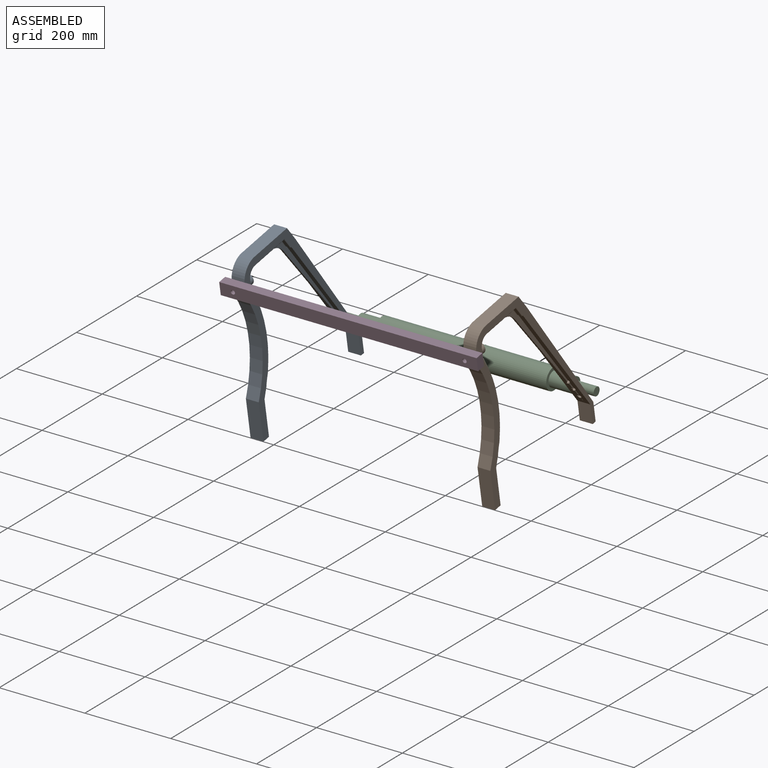
[diagram: assembled view]
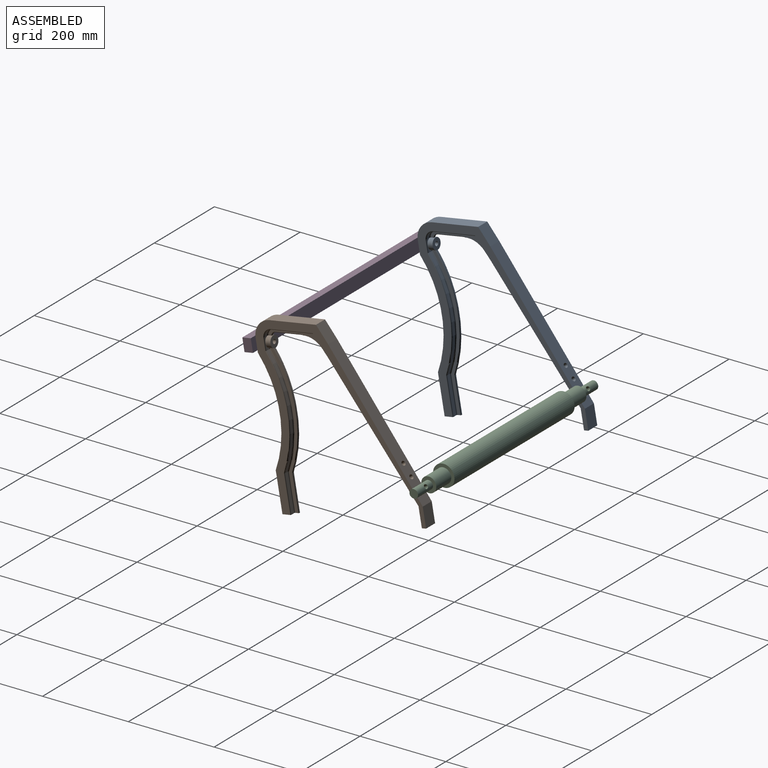
[diagram: assembled view, second angle]
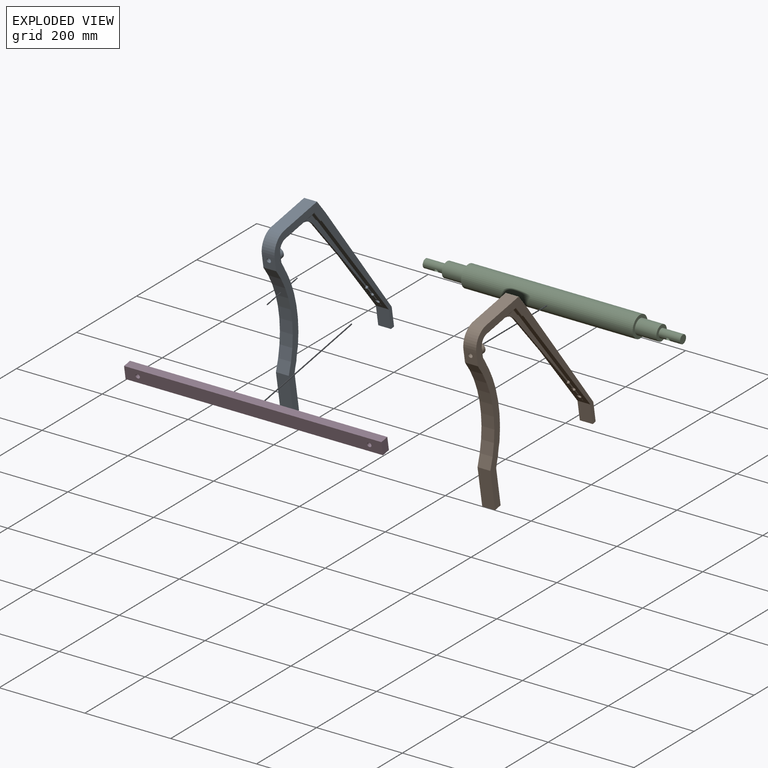
[diagram: exploded view]
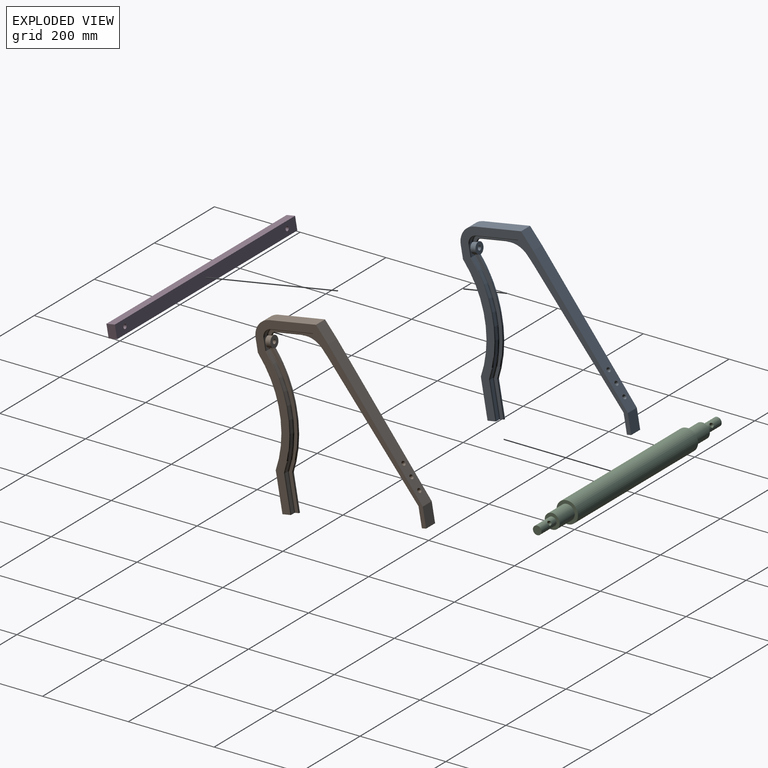
[diagram: exploded view, second angle]
ASSEMBLY  parts=4 mates=4
PART A: 92 faces, bbox 400.1x30.1x340.1 mm
  f0: plane 19.07x12.02mm, normal (0,1,0), area 29.2mm2, adj f6,f82,f90,f91
  f1: plane 19.55x12.92mm, normal (0,1,0), area 51mm2, adj f7,f82,f89,f90
  f2: plane 263.75x256.31mm, normal (0,1,0), area 3106.4mm2, adj f8,f21,f22,f38,f52,f53,f54,f81
  f3: plane 18.29x10.94mm, normal (0,-1,0), area 7.5mm2, adj f31,f79,f91
  f4: plane 19.07x12.02mm, normal (0,-1,0), area 29.2mm2, adj f6,f79,f90,f91
  f5: plane 19.55x12.92mm, normal (0,-1,0), area 51mm2, adj f7,f79,f89,f90
  f6: plane 18.34x11.21mm, normal (0.52,0,-0.85), area 102.4mm2, adj f0,f4,f90,f91
  f7: plane 18.34x11.21mm, normal (0.52,0,-0.85), area 102.4mm2, adj f1,f5,f89,f90
  f8: plane 224.41x136.79mm, normal (0.52,0,-0.85), area 1311.2mm2, adj f2,f29,f85,f89
  f9: plane 10x4.69mm, normal (0,0,1), area 14.3mm2, adj f17,f42,f86
  f10: plane 14.99x8.5mm, normal (0,0,1), area 52mm2, adj f11,f42,f59,f86
  f11: cylinder r=2mm len=2.79mm, axis (-1,0,0), area 7.1mm2, adj f10,f30,f60,f86
  f12: cylinder r=2mm len=0.98mm, axis (-1,0,0), area 0.1mm2, adj f24,f30,f86
  f13: cylinder r=2mm len=0.98mm, axis (-1,0,0), area 0.1mm2, adj f26,f27,f86
  f14: cylinder r=2mm len=2.79mm, axis (-1,0,0), area 7.1mm2, adj f15,f27,f61,f86
  f15: plane 14.99x8.5mm, normal (0,0,1), area 52mm2, adj f14,f43,f62,f86
  f16: plane 10x4.69mm, normal (0,0,1), area 14.3mm2, adj f23,f43,f86
  f17: cylinder r=20mm len=20mm, axis (0,1,0), area 262.8mm2, adj f9,f18,f45,f49,f86
  f18: torus R=18mm, axis (0,1,0), area 87.1mm2, adj f17,f29,f50,f86
  f19: torus R=12mm, axis (0,1,0), area 44mm2, adj f20,f29,f51,f86
  f20: cylinder r=10mm len=9.54mm, axis (0,1,0), area 12.7mm2, adj f19,f21,f52,f86
  f21: torus R=12mm, axis (0,1,0), area 44mm2, adj f2,f20,f53,f86
  f22: torus R=18mm, axis (0,1,0), area 87.1mm2, adj f2,f23,f54,f86
  f23: cylinder r=20mm len=20mm, axis (0,1,0), area 262.8mm2, adj f16,f22,f46,f55,f86
  f24: torus R=278mm, axis (0,-1,0), area 830mm2, adj f12,f25,f30,f68,f86
  f25: cylinder r=280mm len=254.45mm, axis (0,-1,0), area 264.1mm2, adj f24,f26,f69,f86
  f26: torus R=278mm, axis (0,-1,0), area 830mm2, adj f13,f25,f27,f70,f86
  f27: plane 337.26x36.9mm, normal (0,1,0), area 2082.4mm2, adj f13,f14,f26,f33,f61,f70,f71,f86
  f28: plane 18.29x10.94mm, normal (0,1,0), area 7.5mm2, adj f31,f82,f91
  f29: plane 263.75x256.31mm, normal (0,-1,0), area 3106.4mm2, adj f8,f18,f19,f37,f50,f51,f52,f79
  f30: plane 337.26x36.7mm, normal (0,-1,0), area 2082.4mm2, adj f11,f12,f24,f33,f60,f67,f68,f86
  f31: plane 17.97x10.96mm, normal (0.52,0,-0.85), area 102.8mm2, adj f3,f28,f76,f91
  f32: plane 400.01x340.01mm, normal (0,1,0), area 15338.5mm2, adj f33,f34,f40,f41,f43,f44,f46,f47
  f33: plane 30x30mm, normal (1,0,0), area 648.3mm2, adj f27,f30,f32,f64,f65,f66,f67,f68
  f34: plane 37.94x30mm, normal (-0.5,0,0.87), area 1314.2mm2, adj f32,f47,f74,f75
  f35: cylinder r=2mm len=29.94mm, axis (0.87,0,0.5), area 103.2mm2, adj f36,f48,f74,f80
  f36: plane 27.94x16.13mm, normal (0.5,0,-0.87), area 274.2mm2, adj f35,f37,f49,f80
  f37: cylinder r=2mm len=28.94mm, axis (0.87,0,0.5), area 99.5mm2, adj f29,f36,f50,f80
  f38: cylinder r=2mm len=28.94mm, axis (0.87,0,0.5), area 99.5mm2, adj f2,f39,f54,f81
  f39: plane 27.94x16.13mm, normal (0.5,0,-0.87), area 274.2mm2, adj f38,f40,f55,f81
  f40: cylinder r=2mm len=29.94mm, axis (0.87,0,0.5), area 103.2mm2, adj f32,f39,f56,f81
  f41: plane 30x30mm, normal (0,0,-1), area 821.5mm2, adj f32,f44,f57,f74,f88
  f42: cylinder r=2mm len=25.48mm, axis (-1,0,0), area 79.3mm2, adj f9,f10,f45,f58,f74
  f43: cylinder r=2mm len=25.48mm, axis (-1,0,0), area 79.3mm2, adj f15,f16,f32,f46,f63
  f44: cylinder r=40mm len=40mm, axis (0,1,0), area 1885mm2, adj f32,f41,f47,f74
  f45: torus R=22mm, axis (0,1,0), area 102.3mm2, adj f17,f42,f48,f74
  f46: torus R=22mm, axis (0,1,0), area 102.3mm2, adj f23,f32,f43,f56
  f47: plane 110x30mm, normal (-1,0,0), area 3300mm2, adj f32,f34,f44,f74
  f48: cylinder r=2mm len=99.61mm, axis (0,0,1), area 311.1mm2, adj f35,f45,f49,f74
  f49: plane 98.45x8.5mm, normal (1,0,0), area 836.9mm2, adj f17,f36,f48,f50
  f50: cylinder r=2mm len=98.45mm, axis (0,0,1), area 307.5mm2, adj f18,f29,f37,f49
  f51: cylinder r=2mm len=63.48mm, axis (0,0,1), area 199.4mm2, adj f19,f29,f52,f84
  f52: plane 63.86x5mm, normal (1,0,0), area 65.4mm2, adj f2,f20,f29,f51,f53,f83,f84,f85
  f53: cylinder r=2mm len=63.48mm, axis (0,0,1), area 199.4mm2, adj f2,f21,f52,f83
  f54: cylinder r=2mm len=98.45mm, axis (0,0,1), area 307.5mm2, adj f2,f22,f38,f55
  f55: plane 98.45x8.5mm, normal (1,0,0), area 836.9mm2, adj f23,f39,f54,f56
  f56: cylinder r=2mm len=99.61mm, axis (0,0,1), area 311.1mm2, adj f32,f40,f46,f55
  f57: cylinder r=250mm len=240mm, axis (0,-1,0), area 7509.8mm2, adj f32,f41,f64,f74
  f58: torus R=268mm, axis (0,-1,0), area 816mm2, adj f42,f59,f65,f74
  f59: cylinder r=270mm len=250.02mm, axis (0,-1,0), area 2209.5mm2, adj f10,f58,f60,f66
  f60: torus R=272mm, axis (0,-1,0), area 817.2mm2, adj f11,f30,f59,f67
  f61: torus R=272mm, axis (0,-1,0), area 817.2mm2, adj f14,f27,f62,f71
  f62: cylinder r=270mm len=250.02mm, axis (0,-1,0), area 2209.5mm2, adj f15,f61,f63,f72
  f63: torus R=268mm, axis (0,-1,0), area 816mm2, adj f32,f43,f62,f73
  f64: plane 90x30mm, normal (0,0,-1), area 2700mm2, adj f32,f33,f57,f74
  f65: cylinder r=2mm len=85.48mm, axis (-1,0,0), area 267.8mm2, adj f33,f58,f66,f74
  f66: plane 84.99x8.5mm, normal (0,0,1), area 722.4mm2, adj f33,f59,f65,f67
  f67: cylinder r=2mm len=84.99mm, axis (-1,0,0), area 266.2mm2, adj f30,f33,f60,f66
  f68: cylinder r=2mm len=83.04mm, axis (-1,0,0), area 260.1mm2, adj f24,f30,f33,f69
  f69: plane 82.56x1mm, normal (0,0,1), area 82.6mm2, adj f25,f33,f68,f70
  f70: cylinder r=2mm len=83.04mm, axis (-1,0,0), area 260.1mm2, adj f26,f27,f33,f69
  f71: cylinder r=2mm len=84.99mm, axis (-1,0,0), area 266.2mm2, adj f27,f33,f61,f72
  f72: plane 84.99x8.5mm, normal (0,0,1), area 722.4mm2, adj f33,f62,f71,f73
  f73: cylinder r=2mm len=85.48mm, axis (-1,0,0), area 267.8mm2, adj f32,f33,f63,f72
  f74: plane 400.01x340.01mm, normal (0,-1,0), area 15339.2mm2, adj f33,f34,f35,f41,f42,f44,f45,f47
  f75: plane 317.06x168.1mm, normal (-0.47,0,0.88), area 10530.4mm2, adj f32,f34,f74,f78,f89,f90,f91
  f76: plane 45x30mm, normal (0,0,-1), area 1350mm2, adj f31,f32,f74,f77,f79,f82
  f77: plane 30x10mm, normal (1,0,0), area 300mm2, adj f32,f74,f76,f78
  f78: plane 45x30mm, normal (0,0,1), area 1350mm2, adj f32,f74,f75,f77
  f79: plane 308.08x173.7mm, normal (0.49,0,-0.87), area 4374.6mm2, adj f3,f4,f5,f29,f74,f76,f80,f89
  f80: plane 12.5x3.46mm, normal (0.87,0,0.5), area 25mm2, adj f29,f35,f36,f37,f79
  f81: plane 12.5x3.46mm, normal (0.87,0,0.5), area 25mm2, adj f2,f38,f39,f40,f82
  f82: plane 308.08x173.7mm, normal (0.49,0,-0.87), area 4374.6mm2, adj f0,f1,f2,f28,f32,f76,f81,f89
  f83: plane 2x2mm, normal (0,0,-1), area 0.9mm2, adj f2,f52,f53
  f84: plane 2x2mm, normal (0,0,-1), area 0.9mm2, adj f29,f51,f52
  f85: cylinder r=50mm len=42.7mm, axis (0,-1,0), area 255.9mm2, adj f2,f8,f29,f52
  f86: cylinder r=13mm len=26mm, axis (0,0,-1), area 876.4mm2, adj f2,f9,f10,f11,f12,f13,f14,f15
  f87: plane 26x26mm, normal (0,0,1), area 452.4mm2, adj f86,f88
  f88: cylinder r=5mm len=32mm, axis (0,0,1), area 1005.3mm2, adj f41,f87
  f89: cylinder r=5mm len=17.23mm, axis (-0.47,0,0.88), area 377.2mm2, adj f1,f2,f5,f7,f8,f29,f75,f79
  f90: cylinder r=5mm len=15.65mm, axis (-0.47,0,0.88), area 342.1mm2, adj f0,f1,f4,f5,f6,f7,f75,f79
  f91: cylinder r=5mm len=14.06mm, axis (-0.47,0,0.88), area 307.1mm2, adj f0,f3,f4,f6,f28,f31,f75,f79
PART B: same geometry as A
PART C: 13 faces, bbox 600x50x50 mm
  f0: cylinder r=25mm len=400mm, axis (-1,0,0), area 62831.9mm2, adj f1,f2
  f1: plane 50x50mm, normal (1,0,0), area 1001.4mm2, adj f0,f8
  f2: plane 50x50mm, normal (-1,0,0), area 1001.4mm2, adj f0,f3
  f3: cylinder r=17.5mm len=50mm, axis (1,0,0), area 5497.8mm2, adj f2,f4
  f4: plane 35x35mm, normal (-1,0,0), area 648mm2, adj f3,f7
  f5: plane 20x20mm, normal (-1,0,0), area 314.2mm2, adj f7
  f6: cylinder r=5mm len=20mm, axis (0,-1,0), area 587mm2, adj f7
  f7: cylinder r=10mm len=50mm, axis (1,0,0), area 2979.4mm2, adj f4,f5,f6
  f8: cylinder r=17.5mm len=50mm, axis (-1,0,0), area 5497.8mm2, adj f1,f9
  f9: plane 35x35mm, normal (1,0,0), area 648mm2, adj f8,f12
  f10: plane 20x20mm, normal (1,0,0), area 314.2mm2, adj f12
  f11: cylinder r=5mm len=20mm, axis (0,-1,0), area 587mm2, adj f12
  f12: cylinder r=10mm len=50mm, axis (-1,0,0), area 2979.4mm2, adj f9,f10,f11
PART D: 8 faces, bbox 600x30x20 mm
  f0: plane 600x20mm, normal (0,1,0), area 12000mm2, adj f1,f5,f6,f7
  f1: plane 30x20mm, normal (-1,0,0), area 600mm2, adj f0,f2,f6,f7
  f2: plane 600x20mm, normal (0,-1,0), area 12000mm2, adj f1,f5,f6,f7
  f3: cylinder r=5mm len=20mm, axis (0,0,-1), area 628.3mm2, adj f6,f7
  f4: cylinder r=5mm len=20mm, axis (0,0,-1), area 628.3mm2, adj f6,f7
  f5: plane 30x20mm, normal (1,0,0), area 600mm2, adj f0,f2,f6,f7
  f6: plane 600x30mm, normal (0,0,1), area 17842.9mm2, adj f0,f1,f2,f3,f4,f5
  f7: plane 600x30mm, normal (0,0,-1), area 17842.9mm2, adj f0,f1,f2,f3,f4,f5
PLACE A rot(axis=(-0.54,0.54,0.64),114.4deg) t=(483.03,-374.24,846.03)mm
PLACE B rot(axis=(-0.54,0.54,0.64),114.4deg) t=(1023.03,-374.24,846.03)mm
PLACE C rot(axis=(-1,0,0),142.1deg) t=(753.03,-57.67,979.28)mm
PLACE D rot(axis=(-1,0,0),80deg) t=(753.03,-454.71,1187.24)mm
MATE revolute D.f4 <-> A.f86  axis (0,0.98,0.17) through (483.03,-435.01,1190.71)mm
MATE revolute C.f11 <-> B.f91  axis (0,0.79,0.61) through (1023.03,-65.66,973.05)mm
MATE revolute D.f3 <-> B.f86  axis (0,0.98,0.17) through (1023.03,-435.01,1190.71)mm
MATE revolute C.f6 <-> A.f91  axis (0,0.79,0.61) through (483.03,-65.66,973.05)mm
